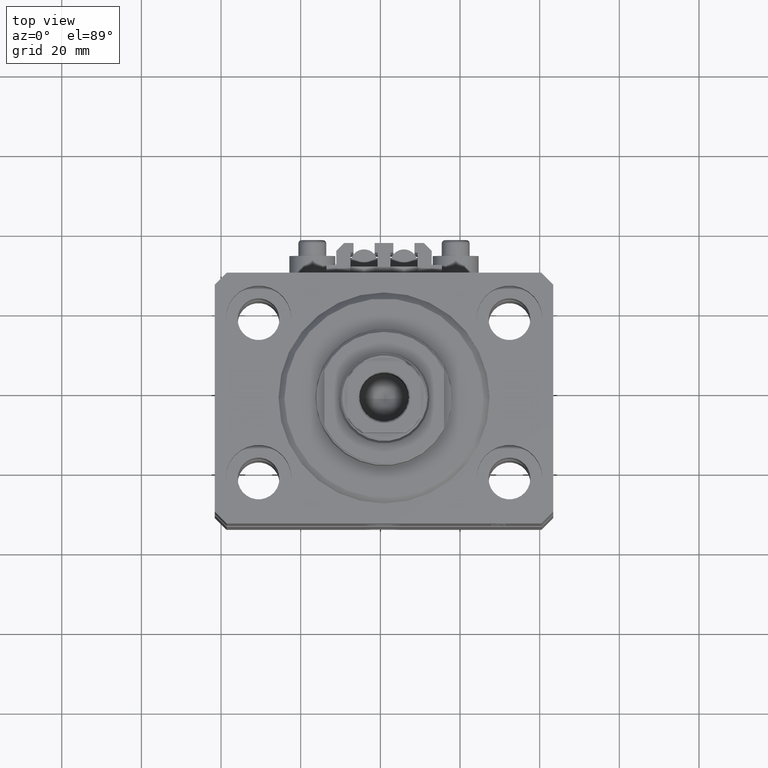
[diagram: clean part render]
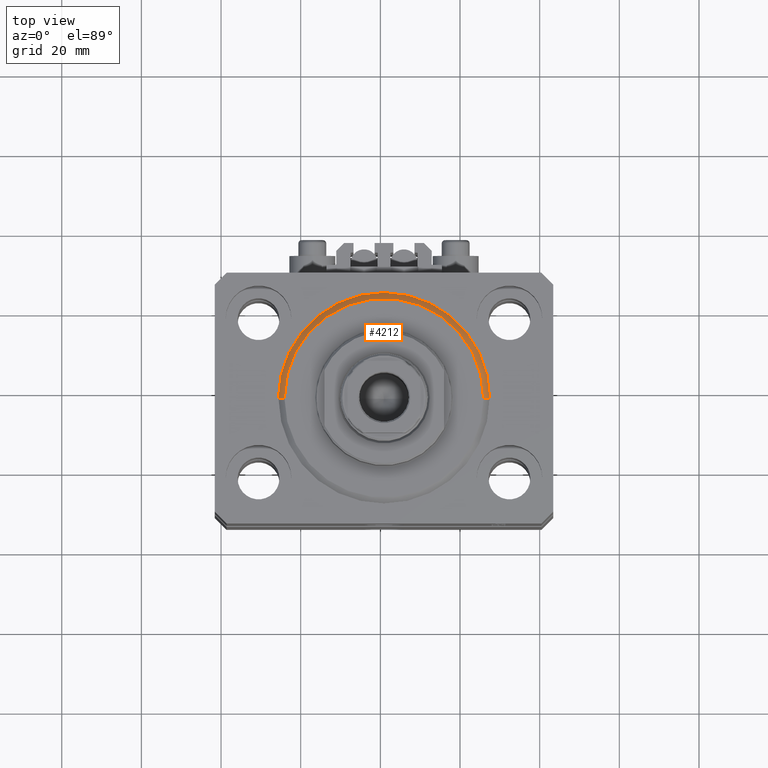
[diagram: same view with one face highlighted and labeled with its STEP entity id]
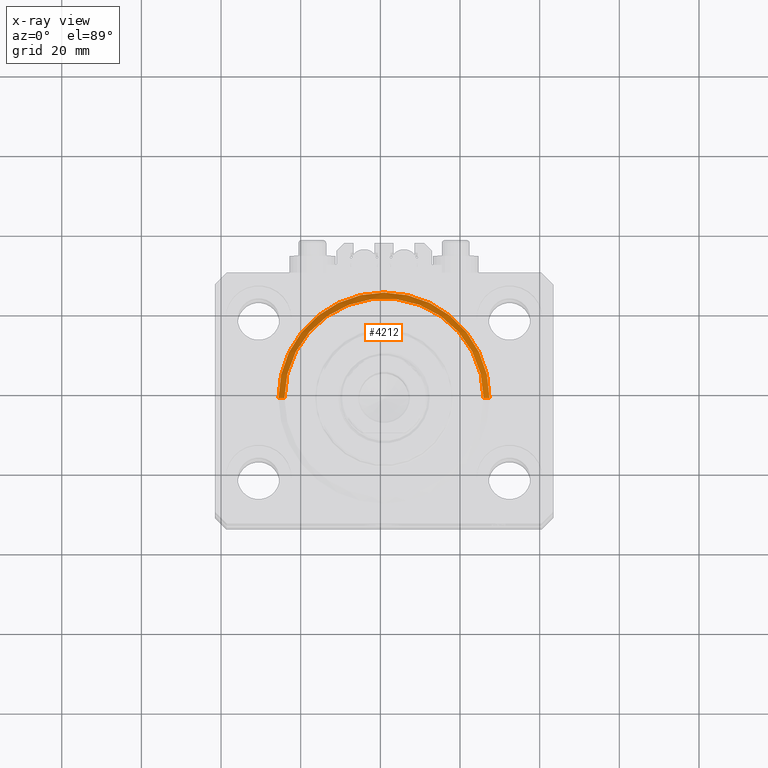
[diagram: x-ray of the same camera — body ghosted, the highlighted face saturated]
A machine part, top view. The second image highlights one B-rep face of the part: STEP entity #4212.
The next image is the same camera in x-ray: the body ghosted, the highlighted face saturated — about 0% of this face is hidden behind the body in this view.
In plain terms, the highlighted conical surface has half-angle 45 deg.
Its self-contained STEP definition (entity closure, byte-faithful):
#1503 = CONICAL_SURFACE ( 'NONE', #17369, 26.50000000000000355, 0.7853981633974495002 ) ;
#1966 = VERTEX_POINT ( 'NONE', #16809 ) ;
#2382 = ORIENTED_EDGE ( 'NONE', *, *, #48152, .F. ) ;
#2684 = DIRECTION ( 'NONE',  ( 1.000000000000000000, 0.000000000000000000, 0.000000000000000000 ) ) ;
#2688 = CARTESIAN_POINT ( 'NONE',  ( -24.99999999999998224, 3.153465507804433615E-15, 0.000000000000000000 ) ) ;
#4212 = ADVANCED_FACE ( 'NONE', ( #7153 ), #1503, .T. ) ;
#4373 = CARTESIAN_POINT ( 'NONE',  ( 0.000000000000000000, 0.000000000000000000, 0.000000000000000000 ) ) ;
#6178 = CARTESIAN_POINT ( 'NONE',  ( 0.000000000000000000, 0.000000000000000000, 1.500000000000018652 ) ) ;
#6248 = ORIENTED_EDGE ( 'NONE', *, *, #47860, .F. ) ;
#7153 = FACE_OUTER_BOUND ( 'NONE', #21909, .T. ) ;
#7819 = CARTESIAN_POINT ( 'NONE',  ( 24.99999999999998224, 0.000000000000000000, 0.000000000000000000 ) ) ;
#10028 = VERTEX_POINT ( 'NONE', #48949 ) ;
#12596 = VERTEX_POINT ( 'NONE', #7819 ) ;
#13512 = VECTOR ( 'NONE', #29266, 1000.000000000000000 ) ;
#14198 = LINE ( 'NONE', #37645, #13512 ) ;
#16809 = CARTESIAN_POINT ( 'NONE',  ( -26.50000000000000355, 0.000000000000000000, 1.500000000000018652 ) ) ;
#17369 = AXIS2_PLACEMENT_3D ( 'NONE', #6178, #28935, #32885 ) ;
#18184 = CIRCLE ( 'NONE', #29228, 26.50000000000000355 ) ;
#21467 = CIRCLE ( 'NONE', #25421, 24.99999999999998224 ) ;
#21795 = DIRECTION ( 'NONE',  ( 1.000000000000000000, 0.000000000000000000, 0.000000000000000000 ) ) ;
#21909 = EDGE_LOOP ( 'NONE', ( #2382, #48185, #23641, #6248 ) ) ;
#22042 = CARTESIAN_POINT ( 'NONE',  ( -26.50000000000000355, 3.245314017740486554E-15, 1.500000000000018652 ) ) ;
#23641 = ORIENTED_EDGE ( 'NONE', *, *, #41528, .F. ) ;
#25421 = AXIS2_PLACEMENT_3D ( 'NONE', #4373, #41964, #21795 ) ;
#25993 = DIRECTION ( 'NONE',  ( -0.7071067811865483499, 8.659560562354942719E-17, 0.7071067811865466846 ) ) ;
#28935 = DIRECTION ( 'NONE',  ( -0.000000000000000000, -0.000000000000000000, 1.000000000000000000 ) ) ;
#29228 = AXIS2_PLACEMENT_3D ( 'NONE', #32847, #36554, #2684 ) ;
#29266 = DIRECTION ( 'NONE',  ( 0.7071067811865483499, 0.000000000000000000, 0.7071067811865466846 ) ) ;
#32847 = CARTESIAN_POINT ( 'NONE',  ( 0.000000000000000000, 0.000000000000000000, 1.500000000000018652 ) ) ;
#32885 = DIRECTION ( 'NONE',  ( 1.000000000000000000, 0.000000000000000000, 0.000000000000000000 ) ) ;
#36012 = VERTEX_POINT ( 'NONE', #2688 ) ;
#36554 = DIRECTION ( 'NONE',  ( -0.000000000000000000, -0.000000000000000000, 1.000000000000000000 ) ) ;
#37645 = CARTESIAN_POINT ( 'NONE',  ( 26.50000000000000355, 0.000000000000000000, 1.500000000000018652 ) ) ;
#41528 = EDGE_CURVE ( 'NONE', #10028, #1966, #18184, .T. ) ;
#41964 = DIRECTION ( 'NONE',  ( -0.000000000000000000, -0.000000000000000000, -1.000000000000000000 ) ) ;
#43583 = VECTOR ( 'NONE', #25993, 1000.000000000000000 ) ;
#45269 = LINE ( 'NONE', #22042, #43583 ) ;
#45598 = EDGE_CURVE ( 'NONE', #36012, #1966, #45269, .T. ) ;
#47860 = EDGE_CURVE ( 'NONE', #12596, #10028, #14198, .T. ) ;
#48152 = EDGE_CURVE ( 'NONE', #36012, #12596, #21467, .T. ) ;
#48185 = ORIENTED_EDGE ( 'NONE', *, *, #45598, .T. ) ;
#48949 = CARTESIAN_POINT ( 'NONE',  ( 26.50000000000000355, 3.245314017740486554E-15, 1.500000000000018652 ) ) ;